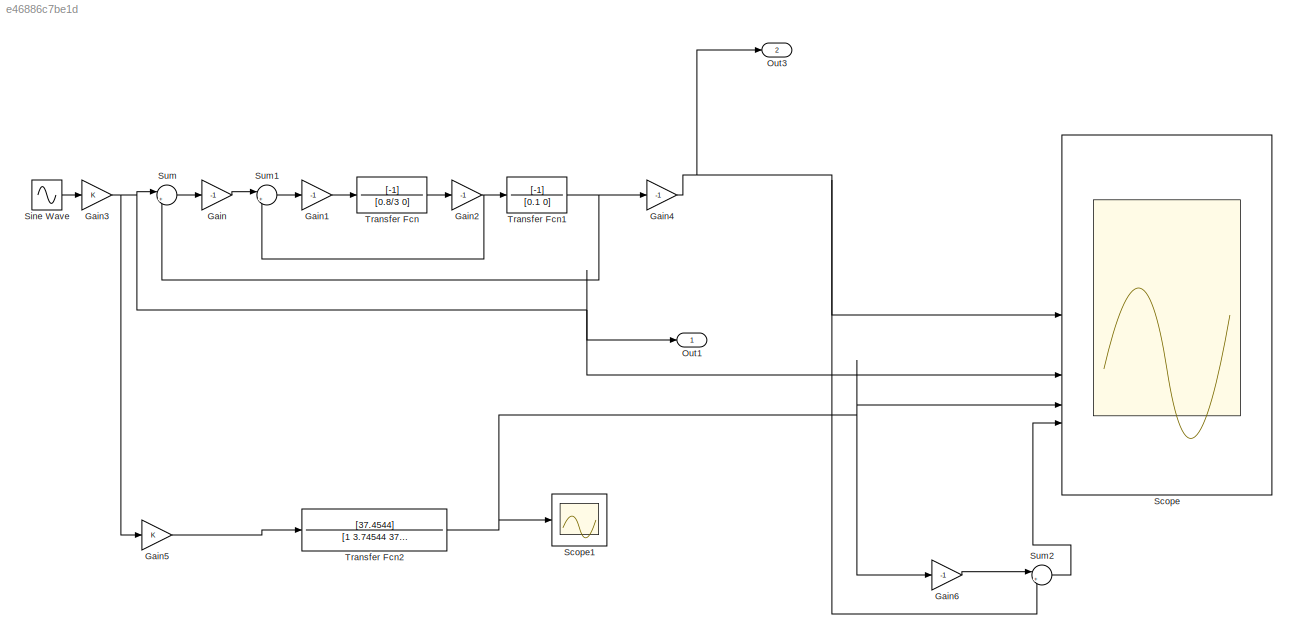
MODEL slx_e46886c7be1d
KIND model
CONFIG AbsTol = auto
CONFIG EnableMultiTasking = off
CONFIG FixedStep = auto
CONFIG MaxStep = 1e-4
CONFIG MinStep = 1e-5
CONFIG RelTol = 1e-3
CONFIG SampleTimeConstraint = Unconstrained
CONFIG SolverName = VariableStepAuto
CONFIG StartTime = 0.0
CONFIG StopTime = 10.0
BLOCK [Gain] Gain
  Gain = -1
BLOCK [Gain] Gain1
  Gain = -1
BLOCK [Gain] Gain2
  Gain = -1
BLOCK [Gain] Gain3
BLOCK [Gain] Gain4
  Gain = -1
BLOCK [Gain] Gain5
BLOCK [Gain] Gain6
  Gain = -1
BLOCK [Outport] Out1
  SignalName = input
BLOCK [Outport] Out3
  Port = 2
  SignalName = output
BLOCK [Scope] Scope
  Floating = off
  NumInputPorts = 4
  ScopeSpecificationString = Simulink.scopes.TimeScopeBlockCfg('CurrentConfiguration', extmgr.ConfigurationSet(extmgr.Configuration('Core','General UI',true),extmgr.Configuration('Core','Source UI',true),extmgr.Configuration('Sources','WiredSimulink',true),extmgr.Configuration('Visuals','Time Domain',true,'SerializedDisplays',{struct('MinYLimReal','-6.42934','MaxYLimReal','6.38531','YLabelReal','','MinYLimMag','0.00000','MaxY...<+1402ch>
BLOCK [Scope] Scope1
  Floating = off
  NumInputPorts = 1
  ScopeSpecificationString = Simulink.scopes.TimeScopeBlockCfg('CurrentConfiguration', extmgr.ConfigurationSet(extmgr.Configuration('Core','General UI',true),extmgr.Configuration('Core','Source UI',true),extmgr.Configuration('Sources','WiredSimulink',true,'DataLoggingVariableName','ScopeData1'),extmgr.Configuration('Visuals','Time Domain',true,'SerializedDisplays',{struct('MinYLimReal','-1.24966','MaxYLimReal','1.24944','YLab...<+1371ch>
BLOCK [Sin] Sine Wave
  Amplitude = 5
  Frequency = 2
  NameLocation = left
  SampleTime = 0
BLOCK [Sum] Sum
  Inputs = |++
BLOCK [Sum] Sum1
  Inputs = |++
BLOCK [Sum] Sum2
  Inputs = |++
BLOCK [TransferFcn] Transfer Fcn
  Denominator = [0.8/3 0]
  Numerator = [-1]
BLOCK [TransferFcn] Transfer Fcn1
  Denominator = [0.1 0]
  Numerator = [-1]
BLOCK [TransferFcn] Transfer Fcn2
  Denominator = [1 3.74544 37.4544]
  Numerator = [37.4544]
LINE Gain1:1 -> Transfer Fcn:1
NET Gain2:1 -> Sum1:2, Transfer Fcn1:1
NET Gain3:1 -> Gain5:1, Out1:1, Scope:2, Sum:1
NET Gain4:1 -> Out3:1, Scope:1, Sum2:2
LINE Gain5:1 -> Transfer Fcn2:1
LINE Gain6:1 -> Sum2:1
LINE Gain:1 -> Sum1:1
LINE Sine Wave:1 -> Gain3:1
LINE Sum1:1 -> Gain1:1
LINE Sum2:1 -> Scope:4
LINE Sum:1 -> Gain:1
NET Transfer Fcn1:1 -> Gain4:1, Sum:2
NET Transfer Fcn2:1 -> Gain6:1, Scope1:1, Scope:3
LINE Transfer Fcn:1 -> Gain2:1
note: NET lines group one-source signal fan-out (src -> all destinations, sorted); 1:1 wires keep LINE
